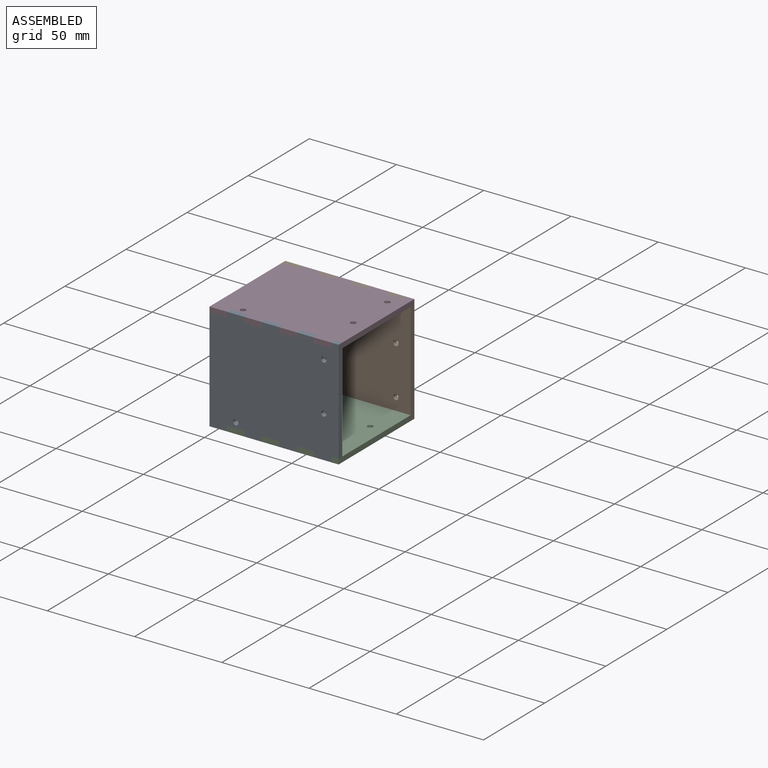
[diagram: assembled view]
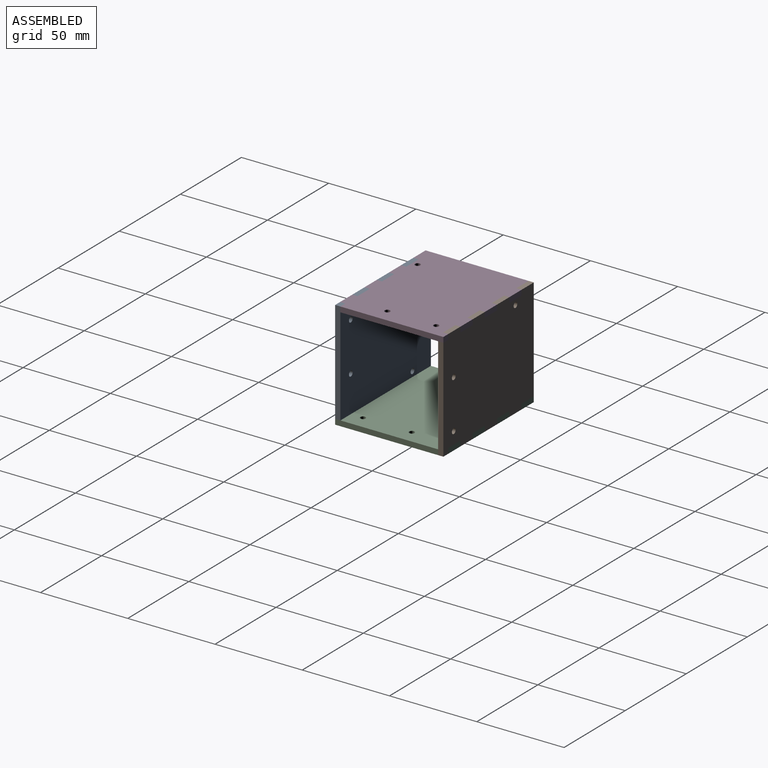
[diagram: assembled view, second angle]
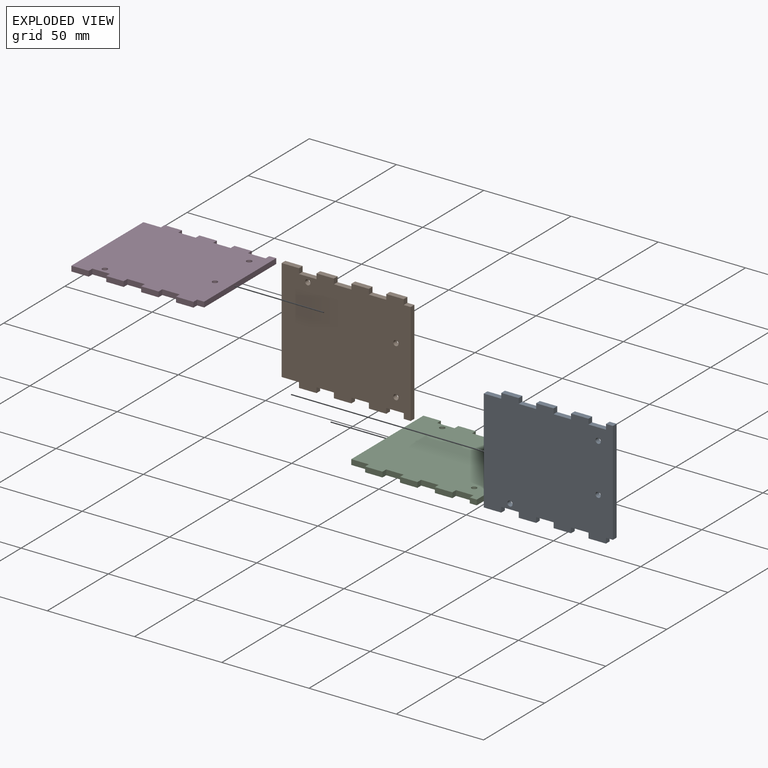
[diagram: exploded view]
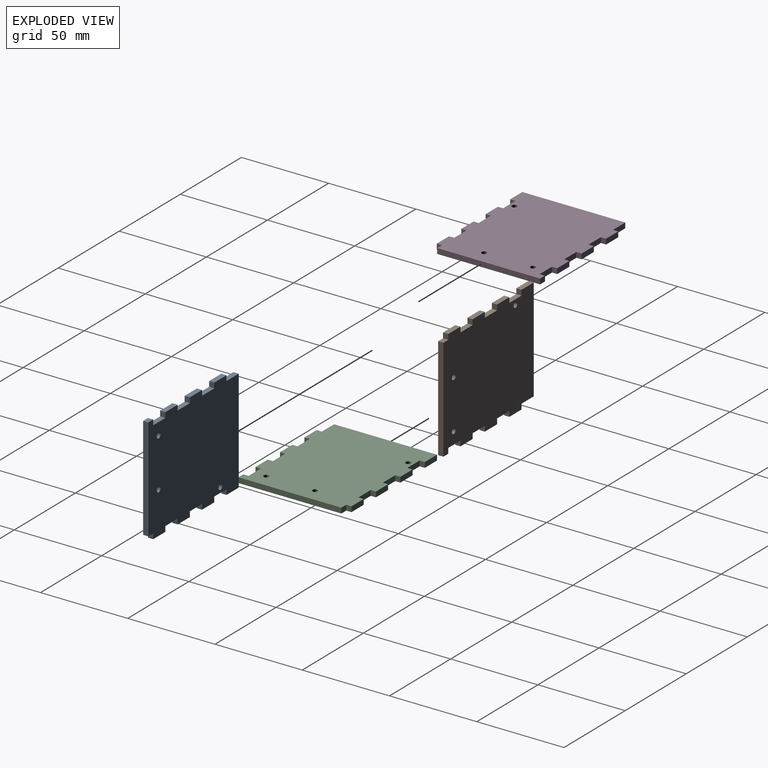
[diagram: exploded view, second angle]
ASSEMBLY  parts=4 mates=3
PART A: 38 faces, bbox 74x62x3 mm
  f0: plane 3x3mm, normal (-1,0,0), area 9mm2, adj f1,f35,f36,f37
  f1: plane 4x3mm, normal (0,-1,0), area 12mm2, adj f0,f2,f36,f37
  f2: plane 59x3mm, normal (1,0,0), area 177mm2, adj f1,f3,f36,f37
  f3: plane 4x3mm, normal (0,1,0), area 12mm2, adj f2,f4,f36,f37
  f4: plane 3x3mm, normal (1,0,0), area 9mm2, adj f3,f5,f36,f37
  f5: plane 10x3mm, normal (0,1,0), area 30mm2, adj f4,f6,f36,f37
  f6: plane 3x3mm, normal (-1,0,0), area 9mm2, adj f5,f7,f36,f37
  f7: plane 10x3mm, normal (0,1,0), area 30mm2, adj f6,f8,f36,f37
  f8: plane 3x3mm, normal (1,0,0), area 9mm2, adj f7,f9,f36,f37
  f9: plane 10x3mm, normal (0,1,0), area 30mm2, adj f8,f10,f36,f37
  f10: plane 3x3mm, normal (-1,0,0), area 9mm2, adj f9,f11,f36,f37
  f11: plane 10x3mm, normal (0,1,0), area 30mm2, adj f10,f12,f36,f37
  f12: plane 3x3mm, normal (1,0,0), area 9mm2, adj f11,f13,f36,f37
  f13: plane 10x3mm, normal (0,1,0), area 30mm2, adj f12,f14,f36,f37
  f14: plane 3x3mm, normal (-1,0,0), area 9mm2, adj f13,f15,f36,f37
  f15: plane 10x3mm, normal (0,1,0), area 30mm2, adj f14,f16,f36,f37
  f16: plane 3x3mm, normal (1,0,0), area 9mm2, adj f15,f17,f36,f37
  f17: plane 10x3mm, normal (0,1,0), area 30mm2, adj f16,f18,f36,f37
  f18: plane 3x3mm, normal (-1,0,0), area 9mm2, adj f17,f19,f36,f37
  f19: plane 56x3mm, normal (-1,0,0), area 168mm2, adj f18,f20,f36,f37
  f20: plane 10x3mm, normal (0,-1,0), area 30mm2, adj f19,f21,f36,f37
  f21: plane 3x3mm, normal (-1,0,0), area 9mm2, adj f20,f22,f36,f37
  f22: plane 10x3mm, normal (0,-1,0), area 30mm2, adj f21,f23,f36,f37
  f23: plane 3x3mm, normal (1,0,0), area 9mm2, adj f22,f24,f36,f37
  f24: plane 10x3mm, normal (0,-1,0), area 30mm2, adj f23,f25,f36,f37
  f25: plane 3x3mm, normal (-1,0,0), area 9mm2, adj f24,f26,f36,f37
  f26: plane 10x3mm, normal (0,-1,0), area 30mm2, adj f25,f27,f36,f37
  f27: plane 3x3mm, normal (1,0,0), area 9mm2, adj f26,f28,f36,f37
  f28: plane 10x3mm, normal (0,-1,0), area 30mm2, adj f27,f29,f36,f37
  f29: plane 3x3mm, normal (-1,0,0), area 9mm2, adj f28,f30,f36,f37
  f30: plane 10x3mm, normal (0,-1,0), area 30mm2, adj f29,f31,f36,f37
  f31: plane 3x3mm, normal (1,0,0), area 9mm2, adj f30,f35,f36,f37
  f32: cylinder r=1.5mm len=3mm, axis (0,0,-1), area 28.3mm2, adj f36,f37
  f33: cylinder r=1.5mm len=3mm, axis (0,0,-1), area 28.3mm2, adj f36,f37
  f34: cylinder r=1.5mm len=3mm, axis (0,0,-1), area 28.3mm2, adj f36,f37
  f35: plane 10x3mm, normal (0,-1,0), area 30mm2, adj f0,f31,f36,f37
  f36: plane 74x62mm, normal (0,0,1), area 4344.8mm2, adj f0,f1,f2,f3,f4,f5,f6,f7
  f37: plane 74x62mm, normal (0,0,-1), area 4344.8mm2, adj f0,f1,f2,f3,f4,f5,f6,f7
PART B: same geometry as A
PART C: same geometry as A
PART D: same geometry as A
PLACE A rot(axis=(-1,0,0),90deg) t=(-16.04,-41.51,21.91)mm
PLACE B rot(axis=(1,0,0),90deg) t=(-16.04,20.49,18.91)mm
PLACE C rot(axis=(-0.16,-0.28,-0.95),0deg) t=(-16.04,-12.01,-10.59)mm
PLACE D rot(axis=(1,0,0),180deg) t=(-16.04,-9.01,51.41)mm
MATE fastened D.f21 <-> B.f16  axis (-1,0,0) through (-43.04,18.99,49.91)mm
MATE fastened A.f16 <-> C.f21  axis (1,0,0) through (-43.04,-40.01,-9.09)mm
MATE fastened B.f31 <-> C.f6  axis (1,0,0) through (6.96,18.99,-9.09)mm
